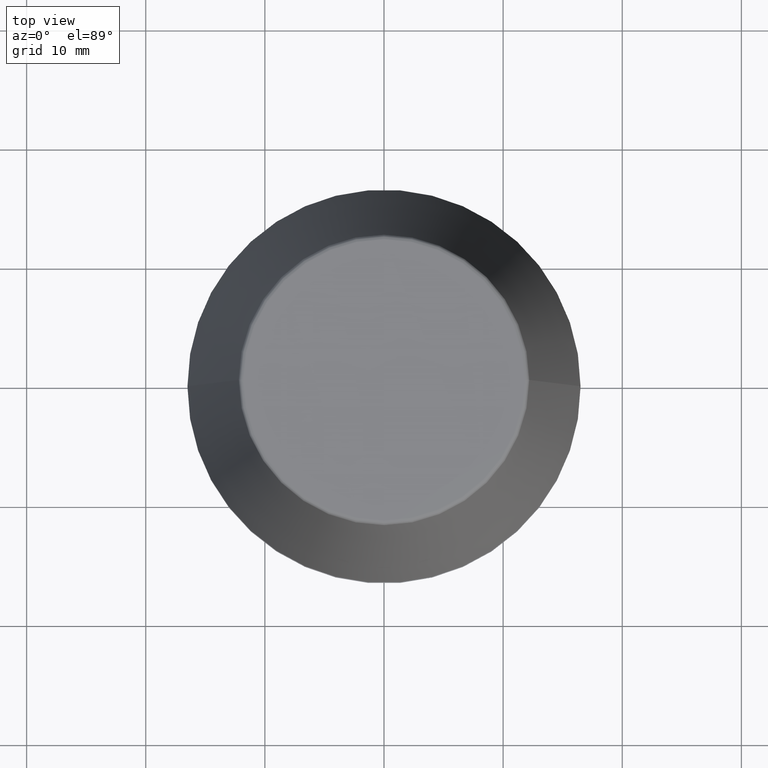
[diagram: clean part render]
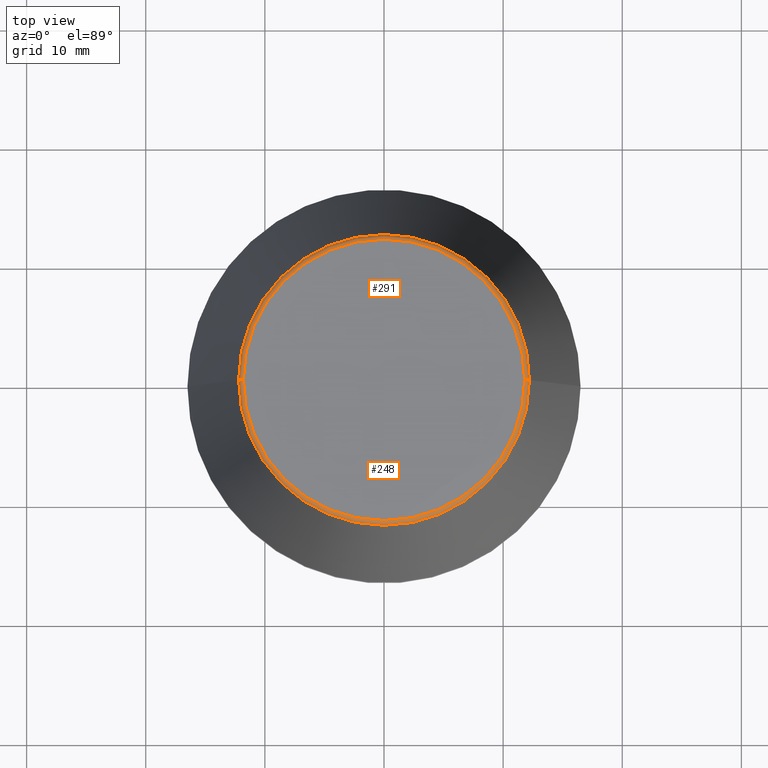
[diagram: same view with one multi-face feature highlighted, each face labeled with its STEP entity id]
A machine part, top view. The highlighted faces form ONE feature: a constant-radius fillet chain: 2 tangent blend faces with common blend radius 0.4 mm. The faces share edges in the B-rep.
Their STEP definitions:
[1] entity #248 (Torus):
#4 = ORIENTED_EDGE ( 'NONE', *, *, #289, .F. ) ;
#10 = AXIS2_PLACEMENT_3D ( 'NONE', #49, #365, #342 ) ;
#14 = CARTESIAN_POINT ( 'NONE',  ( 11.80989888411031400, 0.0000000000000000000, 39.60000000000000100 ) ) ;
#21 = DIRECTION ( 'NONE',  ( -0.0000000000000000000, -0.0000000000000000000, 1.000000000000000000 ) ) ;
#35 = AXIS2_PLACEMENT_3D ( 'NONE', #14, #75, #258 ) ;
#49 = CARTESIAN_POINT ( 'NONE',  ( 0.0000000000000000000, 0.0000000000000000000, 39.65566924038402900 ) ) ;
#53 = CARTESIAN_POINT ( 'NONE',  ( -11.80989888411031400, 1.470550059081603400E-015, 40.00000000000000700 ) ) ;
#54 = DIRECTION ( 'NONE',  ( -0.0000000000000000000, -0.0000000000000000000, 1.000000000000000000 ) ) ;
#60 = DIRECTION ( 'NONE',  ( 1.000000000000000000, 0.0000000000000000000, 0.0000000000000000000 ) ) ;
#64 = ORIENTED_EDGE ( 'NONE', *, *, #90, .T. ) ;
#67 = VERTEX_POINT ( 'NONE', #53 ) ;
#75 = DIRECTION ( 'NONE',  ( 0.0000000000000000000, -1.000000000000000000, 0.0000000000000000000 ) ) ;
#85 = DIRECTION ( 'NONE',  ( 1.000000000000000000, 0.0000000000000000000, 0.0000000000000000000 ) ) ;
#89 = AXIS2_PLACEMENT_3D ( 'NONE', #109, #54, #85 ) ;
#90 = EDGE_CURVE ( 'NONE', #202, #360, #284, .T. ) ;
#109 = CARTESIAN_POINT ( 'NONE',  ( 0.0000000000000000000, 0.0000000000000000000, 40.00000000000000700 ) ) ;
#110 = AXIS2_PLACEMENT_3D ( 'NONE', #296, #115, #266 ) ;
#115 = DIRECTION ( 'NONE',  ( 1.224646799147353200E-016, 1.000000000000000000, 0.0000000000000000000 ) ) ;
#122 = AXIS2_PLACEMENT_3D ( 'NONE', #351, #21, #60 ) ;
#130 = VERTEX_POINT ( 'NONE', #165 ) ;
#165 = CARTESIAN_POINT ( 'NONE',  ( 11.80989888411031400, 0.0000000000000000000, 40.00000000000000700 ) ) ;
#181 = CIRCLE ( 'NONE', #110, 0.4000000000000028000 ) ;
#183 = ORIENTED_EDGE ( 'NONE', *, *, #367, .T. ) ;
#193 = CARTESIAN_POINT ( 'NONE',  ( -12.20600611160694300, 0.0000000000000000000, 39.65566924038402900 ) ) ;
#202 = VERTEX_POINT ( 'NONE', #193 ) ;
#206 = EDGE_CURVE ( 'NONE', #67, #130, #239, .T. ) ;
#239 = CIRCLE ( 'NONE', #89, 11.80989888411031400 ) ;
#248 = ADVANCED_FACE ( 'NONE', ( #278 ), #329, .T. ) ;
#258 = DIRECTION ( 'NONE',  ( 0.0000000000000000000, 0.0000000000000000000, -1.000000000000000000 ) ) ;
#259 = CARTESIAN_POINT ( 'NONE',  ( 12.20600611160694300, 1.757755848304969800E-015, 39.65566924038402900 ) ) ;
#264 = EDGE_LOOP ( 'NONE', ( #4, #64, #183, #321 ) ) ;
#266 = DIRECTION ( 'NONE',  ( -1.000000000000000000, 1.224646799147352500E-016, 0.0000000000000000000 ) ) ;
#268 = CIRCLE ( 'NONE', #35, 0.4000000000000045200 ) ;
#278 = FACE_OUTER_BOUND ( 'NONE', #264, .T. ) ;
#284 = CIRCLE ( 'NONE', #10, 12.20600611160694300 ) ;
#289 = EDGE_CURVE ( 'NONE', #202, #67, #181, .T. ) ;
#296 = CARTESIAN_POINT ( 'NONE',  ( -11.80989888411031400, 1.446295486667959300E-015, 39.60000000000000100 ) ) ;
#321 = ORIENTED_EDGE ( 'NONE', *, *, #206, .F. ) ;
#329 = TOROIDAL_SURFACE ( 'NONE', #122, 11.80989888411031400, 0.4000000000000026900 ) ;
#342 = DIRECTION ( 'NONE',  ( 1.000000000000000000, 0.0000000000000000000, 0.0000000000000000000 ) ) ;
#351 = CARTESIAN_POINT ( 'NONE',  ( 0.0000000000000000000, 0.0000000000000000000, 39.60000000000000100 ) ) ;
#360 = VERTEX_POINT ( 'NONE', #259 ) ;
#365 = DIRECTION ( 'NONE',  ( -0.0000000000000000000, -0.0000000000000000000, 1.000000000000000000 ) ) ;
#367 = EDGE_CURVE ( 'NONE', #360, #130, #268, .T. ) ;
[2] entity #291 (Torus):
#14 = CARTESIAN_POINT ( 'NONE',  ( 11.80989888411031400, 0.0000000000000000000, 39.60000000000000100 ) ) ;
#24 = CARTESIAN_POINT ( 'NONE',  ( 0.0000000000000000000, 0.0000000000000000000, 40.00000000000000700 ) ) ;
#35 = AXIS2_PLACEMENT_3D ( 'NONE', #14, #75, #258 ) ;
#38 = CARTESIAN_POINT ( 'NONE',  ( 0.0000000000000000000, 0.0000000000000000000, 39.65566924038402900 ) ) ;
#42 = AXIS2_PLACEMENT_3D ( 'NONE', #24, #44, #226 ) ;
#44 = DIRECTION ( 'NONE',  ( -0.0000000000000000000, -0.0000000000000000000, 1.000000000000000000 ) ) ;
#53 = CARTESIAN_POINT ( 'NONE',  ( -11.80989888411031400, 1.470550059081603400E-015, 40.00000000000000700 ) ) ;
#67 = VERTEX_POINT ( 'NONE', #53 ) ;
#75 = DIRECTION ( 'NONE',  ( 0.0000000000000000000, -1.000000000000000000, 0.0000000000000000000 ) ) ;
#86 = AXIS2_PLACEMENT_3D ( 'NONE', #87, #353, #230 ) ;
#87 = CARTESIAN_POINT ( 'NONE',  ( 0.0000000000000000000, 0.0000000000000000000, 39.60000000000000100 ) ) ;
#110 = AXIS2_PLACEMENT_3D ( 'NONE', #296, #115, #266 ) ;
#111 = CIRCLE ( 'NONE', #334, 12.20600611160694300 ) ;
#115 = DIRECTION ( 'NONE',  ( 1.224646799147353200E-016, 1.000000000000000000, 0.0000000000000000000 ) ) ;
#119 = FACE_OUTER_BOUND ( 'NONE', #336, .T. ) ;
#130 = VERTEX_POINT ( 'NONE', #165 ) ;
#165 = CARTESIAN_POINT ( 'NONE',  ( 11.80989888411031400, 0.0000000000000000000, 40.00000000000000700 ) ) ;
#181 = CIRCLE ( 'NONE', #110, 0.4000000000000028000 ) ;
#193 = CARTESIAN_POINT ( 'NONE',  ( -12.20600611160694300, 0.0000000000000000000, 39.65566924038402900 ) ) ;
#202 = VERTEX_POINT ( 'NONE', #193 ) ;
#207 = DIRECTION ( 'NONE',  ( -0.0000000000000000000, -0.0000000000000000000, 1.000000000000000000 ) ) ;
#215 = ORIENTED_EDGE ( 'NONE', *, *, #289, .T. ) ;
#224 = ORIENTED_EDGE ( 'NONE', *, *, #341, .T. ) ;
#226 = DIRECTION ( 'NONE',  ( 1.000000000000000000, 0.0000000000000000000, 0.0000000000000000000 ) ) ;
#230 = DIRECTION ( 'NONE',  ( 1.000000000000000000, 0.0000000000000000000, 0.0000000000000000000 ) ) ;
#250 = TOROIDAL_SURFACE ( 'NONE', #86, 11.80989888411031400, 0.4000000000000026900 ) ;
#258 = DIRECTION ( 'NONE',  ( 0.0000000000000000000, 0.0000000000000000000, -1.000000000000000000 ) ) ;
#259 = CARTESIAN_POINT ( 'NONE',  ( 12.20600611160694300, 1.757755848304969800E-015, 39.65566924038402900 ) ) ;
#266 = DIRECTION ( 'NONE',  ( -1.000000000000000000, 1.224646799147352500E-016, 0.0000000000000000000 ) ) ;
#268 = CIRCLE ( 'NONE', #35, 0.4000000000000045200 ) ;
#289 = EDGE_CURVE ( 'NONE', #202, #67, #181, .T. ) ;
#290 = ORIENTED_EDGE ( 'NONE', *, *, #378, .F. ) ;
#291 = ADVANCED_FACE ( 'NONE', ( #119 ), #250, .T. ) ;
#296 = CARTESIAN_POINT ( 'NONE',  ( -11.80989888411031400, 1.446295486667959300E-015, 39.60000000000000100 ) ) ;
#306 = DIRECTION ( 'NONE',  ( 1.000000000000000000, 0.0000000000000000000, 0.0000000000000000000 ) ) ;
#334 = AXIS2_PLACEMENT_3D ( 'NONE', #38, #207, #306 ) ;
#336 = EDGE_LOOP ( 'NONE', ( #224, #215, #290, #362 ) ) ;
#341 = EDGE_CURVE ( 'NONE', #360, #202, #111, .T. ) ;
#353 = DIRECTION ( 'NONE',  ( -0.0000000000000000000, -0.0000000000000000000, 1.000000000000000000 ) ) ;
#359 = CIRCLE ( 'NONE', #42, 11.80989888411031400 ) ;
#360 = VERTEX_POINT ( 'NONE', #259 ) ;
#362 = ORIENTED_EDGE ( 'NONE', *, *, #367, .F. ) ;
#367 = EDGE_CURVE ( 'NONE', #360, #130, #268, .T. ) ;
#378 = EDGE_CURVE ( 'NONE', #130, #67, #359, .T. ) ;